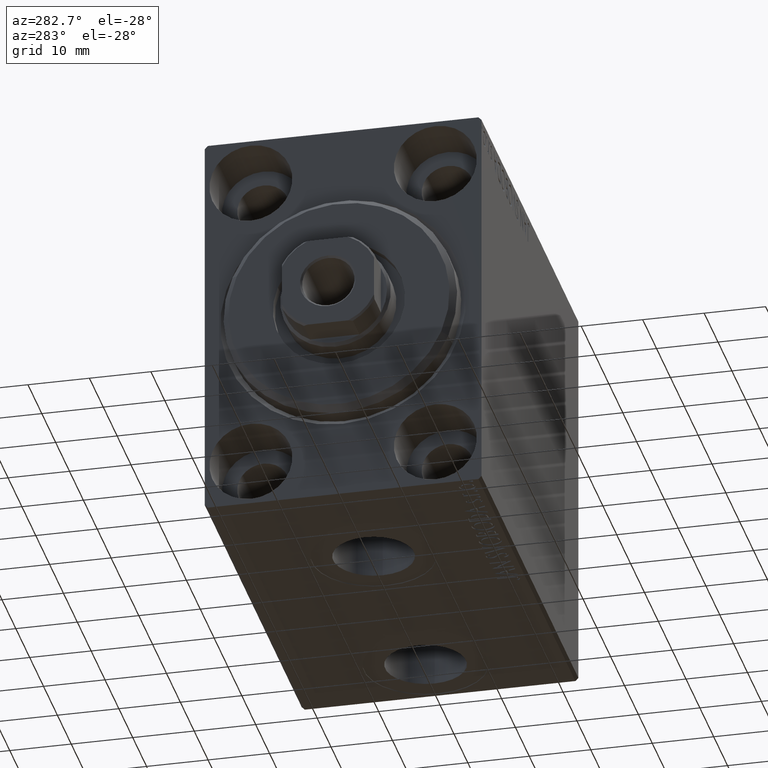
[diagram: clean part render]
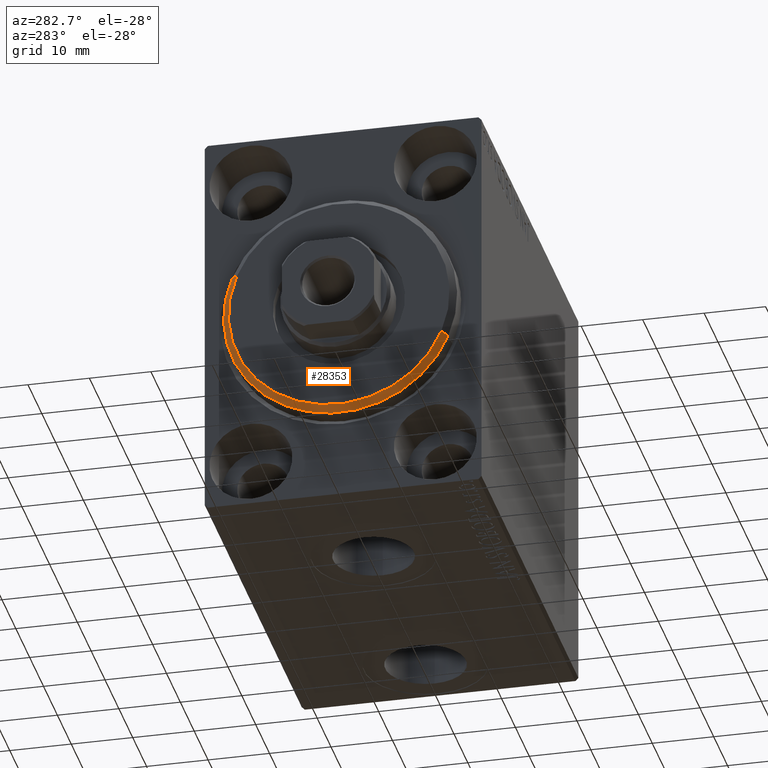
[diagram: same view with one face highlighted and labeled with its STEP entity id]
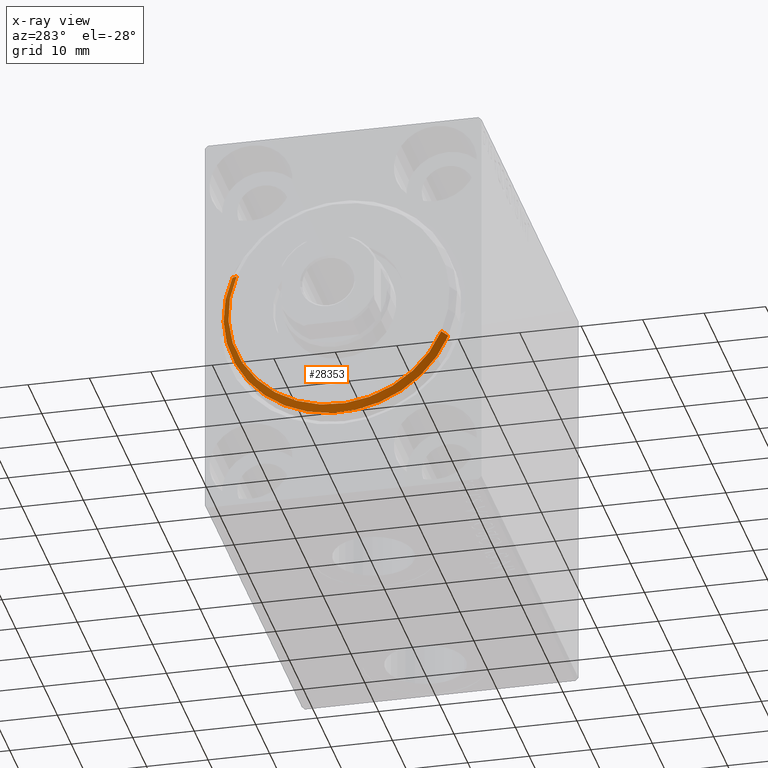
[diagram: x-ray of the same camera — body ghosted, the highlighted face saturated]
A machine part, auxiliary view. The second image highlights one B-rep face of the part: STEP entity #28353.
The next image is the same camera in x-ray: the body ghosted, the highlighted face saturated — about 0% of this face is hidden behind the body in this view.
In plain terms, the highlighted conical surface has half-angle 45 deg.
Its self-contained STEP definition (entity closure, byte-faithful):
#1138 = EDGE_CURVE ( 'NONE', #33767, #26814, #39562, .T. ) ;
#1638 = EDGE_CURVE ( 'NONE', #2222, #33767, #34532, .T. ) ;
#2222 = VERTEX_POINT ( 'NONE', #9717 ) ;
#2253 = FACE_OUTER_BOUND ( 'NONE', #4814, .T. ) ;
#3785 = VECTOR ( 'NONE', #27226, 1000.000000000000000 ) ;
#4814 = EDGE_LOOP ( 'NONE', ( #44218, #32367, #8739, #32440 ) ) ;
#8720 = DIRECTION ( 'NONE',  ( 0.000000000000000000, 0.000000000000000000, -1.000000000000000000 ) ) ;
#8739 = ORIENTED_EDGE ( 'NONE', *, *, #1138, .F. ) ;
#9717 = CARTESIAN_POINT ( 'NONE',  ( 3.000000000000000000, 0.000000000000000000, 17.99999999999999645 ) ) ;
#12366 = CIRCLE ( 'NONE', #28460, 17.99999999999999645 ) ;
#13209 = DIRECTION ( 'NONE',  ( -1.000000000000000000, 0.000000000000000000, 0.000000000000000000 ) ) ;
#13246 = CARTESIAN_POINT ( 'NONE',  ( 3.000000000000000000, 2.265596578422603002E-15, -17.99999999999999645 ) ) ;
#16752 = LINE ( 'NONE', #40986, #27513 ) ;
#18391 = EDGE_CURVE ( 'NONE', #35042, #26814, #16752, .T. ) ;
#22838 = DIRECTION ( 'NONE',  ( 0.000000000000000000, 0.000000000000000000, 1.000000000000000000 ) ) ;
#26065 = CARTESIAN_POINT ( 'NONE',  ( 3.000000000000000000, 0.000000000000000000, 0.000000000000000000 ) ) ;
#26814 = VERTEX_POINT ( 'NONE', #31929 ) ;
#27158 = DIRECTION ( 'NONE',  ( 0.000000000000000000, 0.000000000000000000, -1.000000000000000000 ) ) ;
#27226 = DIRECTION ( 'NONE',  ( -0.7071067811865487940, 0.000000000000000000, 0.7071067811865463515 ) ) ;
#27513 = VECTOR ( 'NONE', #41441, 1000.000000000000000 ) ;
#28353 = ADVANCED_FACE ( 'NONE', ( #2253 ), #30383, .T. ) ;
#28460 = AXIS2_PLACEMENT_3D ( 'NONE', #36626, #44600, #8720 ) ;
#30383 = CONICAL_SURFACE ( 'NONE', #35486, 17.99999999999999645, 0.7853981633974466137 ) ;
#31929 = CARTESIAN_POINT ( 'NONE',  ( 1.999999999999992228, 2.326828918379970970E-15, -19.00000000000000000 ) ) ;
#32367 = ORIENTED_EDGE ( 'NONE', *, *, #18391, .T. ) ;
#32440 = ORIENTED_EDGE ( 'NONE', *, *, #1638, .F. ) ;
#33767 = VERTEX_POINT ( 'NONE', #40506 ) ;
#34018 = CARTESIAN_POINT ( 'NONE',  ( 1.999999999999992228, 0.000000000000000000, 0.000000000000000000 ) ) ;
#34532 = LINE ( 'NONE', #34762, #3785 ) ;
#34762 = CARTESIAN_POINT ( 'NONE',  ( 3.000000000000000000, 0.000000000000000000, 17.99999999999999645 ) ) ;
#35042 = VERTEX_POINT ( 'NONE', #13246 ) ;
#35486 = AXIS2_PLACEMENT_3D ( 'NONE', #26065, #43874, #22838 ) ;
#36626 = CARTESIAN_POINT ( 'NONE',  ( 3.000000000000000000, 0.000000000000000000, 0.000000000000000000 ) ) ;
#36662 = AXIS2_PLACEMENT_3D ( 'NONE', #34018, #13209, #27158 ) ;
#39562 = CIRCLE ( 'NONE', #36662, 19.00000000000000000 ) ;
#40506 = CARTESIAN_POINT ( 'NONE',  ( 1.999999999999992228, 0.000000000000000000, 19.00000000000000000 ) ) ;
#40986 = CARTESIAN_POINT ( 'NONE',  ( 3.000000000000000000, 2.204364238465235033E-15, -17.99999999999999645 ) ) ;
#41441 = DIRECTION ( 'NONE',  ( -0.7071067811865487940, 8.659560562354918067E-17, -0.7071067811865463515 ) ) ;
#41862 = EDGE_CURVE ( 'NONE', #35042, #2222, #12366, .T. ) ;
#43874 = DIRECTION ( 'NONE',  ( -1.000000000000000000, 0.000000000000000000, 0.000000000000000000 ) ) ;
#44218 = ORIENTED_EDGE ( 'NONE', *, *, #41862, .F. ) ;
#44600 = DIRECTION ( 'NONE',  ( 1.000000000000000000, -0.000000000000000000, 0.000000000000000000 ) ) ;